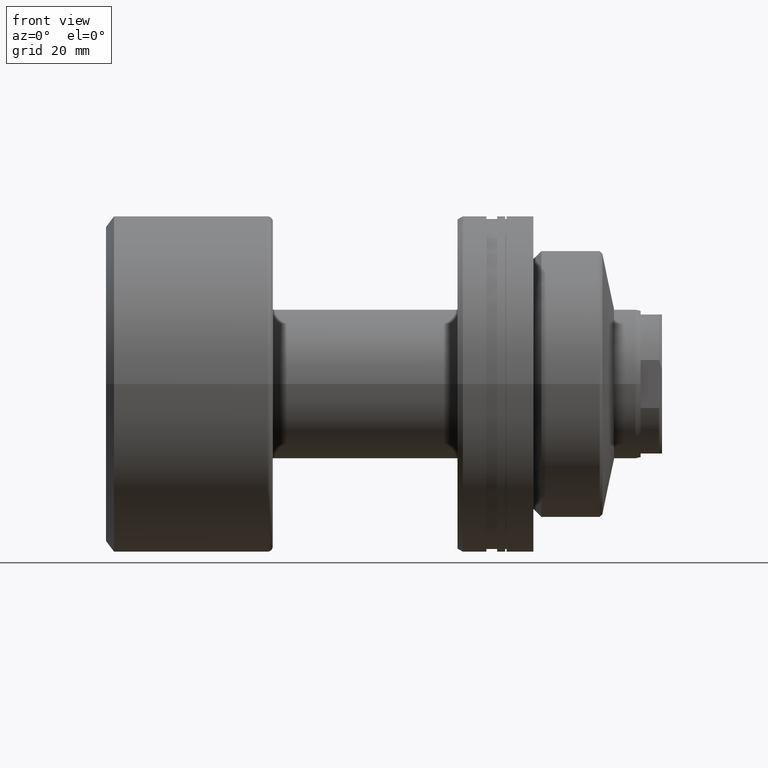
[diagram: clean part render]
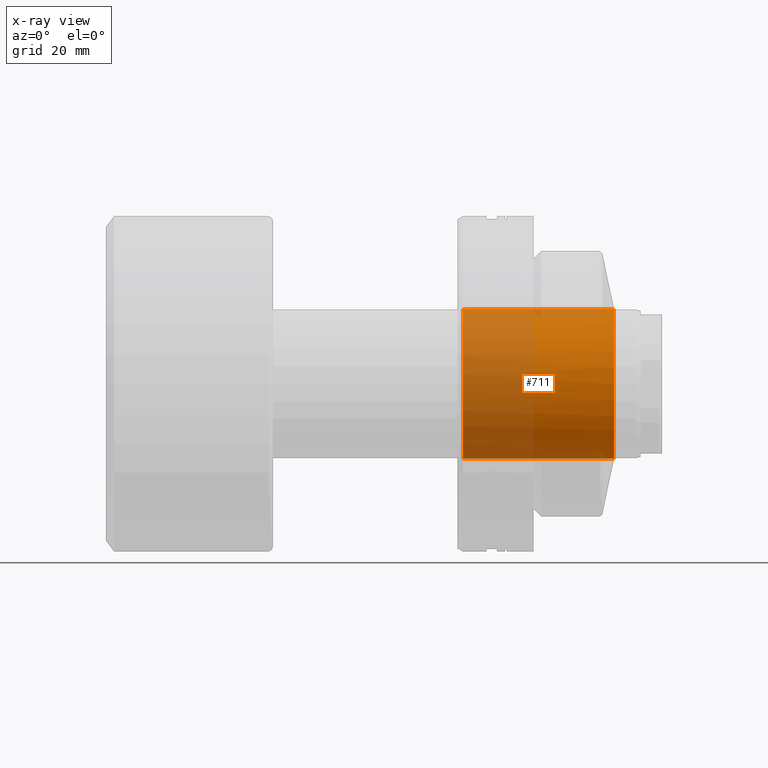
[diagram: x-ray — body ghosted, one internal face saturated and labeled with its STEP entity id]
A machine part, front view, then the same camera in x-ray: the body is ghosted and one INTERNAL B-rep face — a face not visible from any outside direction — is saturated and labeled: STEP entity #711.
In plain terms, the highlighted cylindrical surface (partial cylindrical patch) has radius 14 mm, axis along (1, 0, 0).
Its self-contained STEP definition (entity closure, byte-faithful):
#3 = DIRECTION ( 'NONE',  ( 0.000000000000000000, 0.000000000000000000, -1.000000000000000000 ) ) ;
#71 = ORIENTED_EDGE ( 'NONE', *, *, #483, .F. ) ;
#76 = CARTESIAN_POINT ( 'NONE',  ( -31.20000000000002061, 0.000000000000000000, -14.00000000000000178 ) ) ;
#214 = FACE_OUTER_BOUND ( 'NONE', #1141, .T. ) ;
#246 = DIRECTION ( 'NONE',  ( 0.000000000000000000, 0.000000000000000000, -1.000000000000000000 ) ) ;
#284 = AXIS2_PLACEMENT_3D ( 'NONE', #980, #1548, #496 ) ;
#389 = CIRCLE ( 'NONE', #284, 14.00000000000000178 ) ;
#483 = EDGE_CURVE ( 'NONE', #818, #1957, #389, .T. ) ;
#496 = DIRECTION ( 'NONE',  ( 1.920586705545750655E-15, -1.000000000000000000, 0.000000000000000000 ) ) ;
#511 = AXIS2_PLACEMENT_3D ( 'NONE', #1211, #1750, #3 ) ;
#517 = CARTESIAN_POINT ( 'NONE',  ( -2.914285714286113826, 6.162975822039154730E-30, -14.00000000000000178 ) ) ;
#569 = CYLINDRICAL_SURFACE ( 'NONE', #1257, 14.00000000000000178 ) ;
#609 = VERTEX_POINT ( 'NONE', #517 ) ;
#691 = EDGE_CURVE ( 'NONE', #1983, #1957, #708, .T. ) ;
#708 = LINE ( 'NONE', #1953, #1183 ) ;
#711 = ADVANCED_FACE ( 'NONE', ( #214 ), #569, .F. ) ;
#748 = DIRECTION ( 'NONE',  ( 1.000000000000000000, -0.000000000000000000, -0.000000000000000000 ) ) ;
#756 = VERTEX_POINT ( 'NONE', #76 ) ;
#759 = DIRECTION ( 'NONE',  ( 1.920586705545750655E-15, -1.000000000000000000, 0.000000000000000000 ) ) ;
#818 = VERTEX_POINT ( 'NONE', #1458 ) ;
#924 = CIRCLE ( 'NONE', #1259, 14.00000000000000178 ) ;
#942 = CARTESIAN_POINT ( 'NONE',  ( -2.914285714286113826, 5.285403157867643656E-14, 0.000000000000000000 ) ) ;
#950 = CARTESIAN_POINT ( 'NONE',  ( -71.79797974644668557, 0.000000000000000000, 0.000000000000000000 ) ) ;
#980 = CARTESIAN_POINT ( 'NONE',  ( -2.914285714286113826, 5.285403157867643656E-14, 0.000000000000000000 ) ) ;
#1099 = VECTOR ( 'NONE', #1865, 1000.000000000000000 ) ;
#1131 = EDGE_CURVE ( 'NONE', #756, #1983, #2083, .T. ) ;
#1141 = EDGE_LOOP ( 'NONE', ( #2045, #2221, #71, #1842, #1582 ) ) ;
#1183 = VECTOR ( 'NONE', #2140, 1000.000000000000000 ) ;
#1211 = CARTESIAN_POINT ( 'NONE',  ( -31.20000000000002061, 0.000000000000000000, 0.000000000000000000 ) ) ;
#1257 = AXIS2_PLACEMENT_3D ( 'NONE', #950, #748, #246 ) ;
#1259 = AXIS2_PLACEMENT_3D ( 'NONE', #942, #1997, #759 ) ;
#1369 = CARTESIAN_POINT ( 'NONE',  ( -2.914285714286113826, 1.714505518806296807E-15, 14.00000000000000178 ) ) ;
#1458 = CARTESIAN_POINT ( 'NONE',  ( -2.914285714286086737, -13.99999999999995026, 0.000000000000000000 ) ) ;
#1511 = CARTESIAN_POINT ( 'NONE',  ( -71.79797974644668557, 0.000000000000000000, -14.00000000000000178 ) ) ;
#1548 = DIRECTION ( 'NONE',  ( -1.000000000000000000, -1.931394410353556421E-15, 0.000000000000000000 ) ) ;
#1582 = ORIENTED_EDGE ( 'NONE', *, *, #1742, .F. ) ;
#1742 = EDGE_CURVE ( 'NONE', #756, #609, #2041, .T. ) ;
#1750 = DIRECTION ( 'NONE',  ( -1.000000000000000000, 0.000000000000000000, 0.000000000000000000 ) ) ;
#1842 = ORIENTED_EDGE ( 'NONE', *, *, #2147, .F. ) ;
#1865 = DIRECTION ( 'NONE',  ( 1.000000000000000000, -0.000000000000000000, -0.000000000000000000 ) ) ;
#1945 = CARTESIAN_POINT ( 'NONE',  ( -31.20000000000002061, 1.714505518806294835E-15, 14.00000000000000178 ) ) ;
#1953 = CARTESIAN_POINT ( 'NONE',  ( -71.79797974644668557, 1.714505518806294835E-15, 14.00000000000000178 ) ) ;
#1957 = VERTEX_POINT ( 'NONE', #1369 ) ;
#1983 = VERTEX_POINT ( 'NONE', #1945 ) ;
#1997 = DIRECTION ( 'NONE',  ( -1.000000000000000000, -1.931394410353556421E-15, 0.000000000000000000 ) ) ;
#2041 = LINE ( 'NONE', #1511, #1099 ) ;
#2045 = ORIENTED_EDGE ( 'NONE', *, *, #1131, .T. ) ;
#2083 = CIRCLE ( 'NONE', #511, 14.00000000000000178 ) ;
#2140 = DIRECTION ( 'NONE',  ( 1.000000000000000000, -0.000000000000000000, -0.000000000000000000 ) ) ;
#2147 = EDGE_CURVE ( 'NONE', #609, #818, #924, .T. ) ;
#2221 = ORIENTED_EDGE ( 'NONE', *, *, #691, .T. ) ;